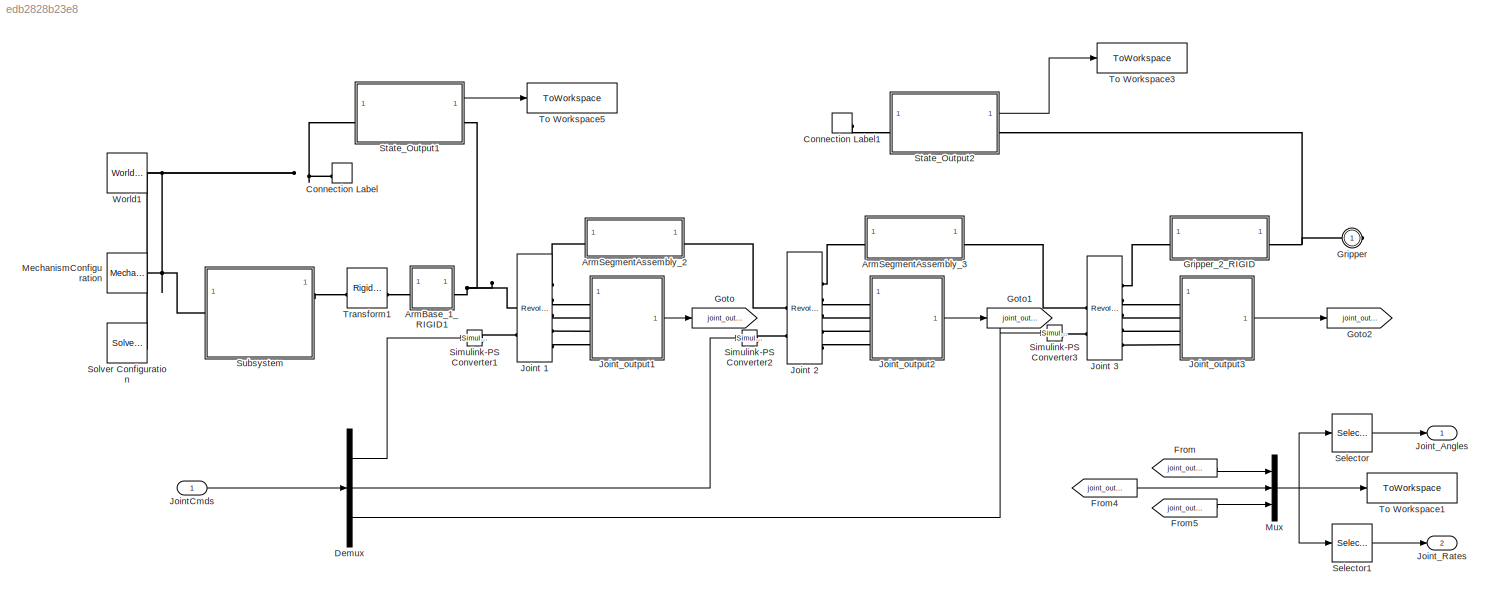
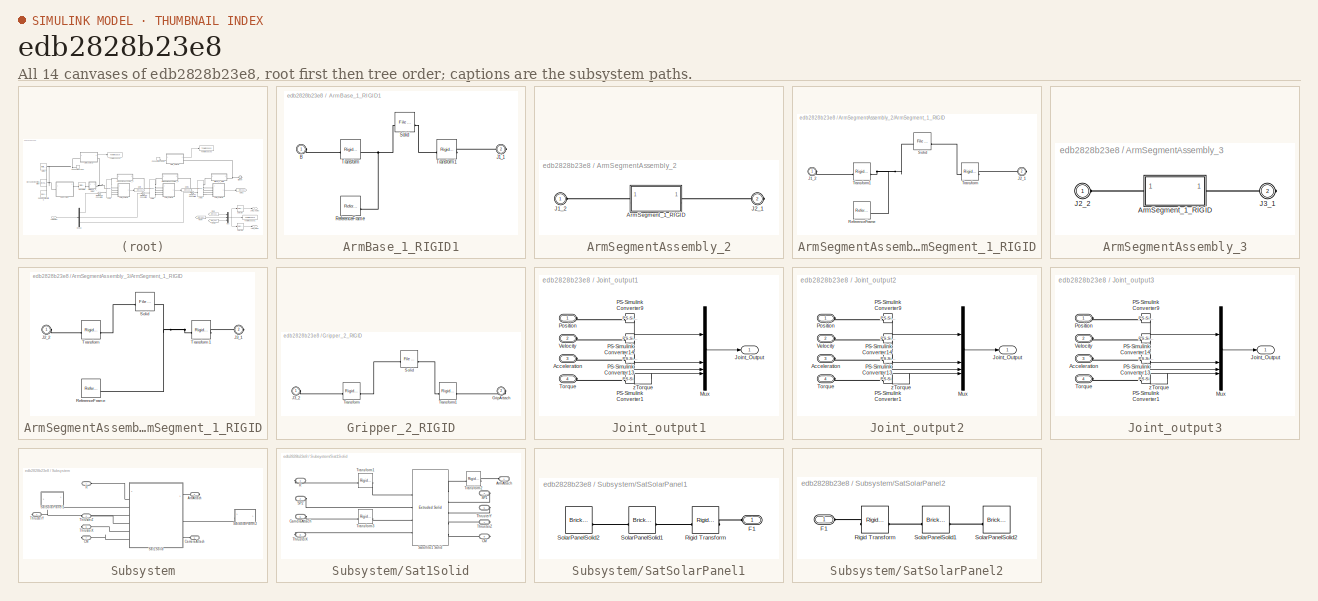
[diagram: thumbnail index - all 14 canvases of the model, root first then tree order]
MODEL slx_edb2828b23e8
KIND model
CONFIG AbsTol = auto
CONFIG EnableMultiTasking = off
CONFIG FixedStep = auto
CONFIG MaxStep = auto
CONFIG MinStep = auto
CONFIG RelTol = 1e-3
CONFIG SampleTimeConstraint = Unconstrained
CONFIG SolverName = VariableStepAuto
CONFIG StartTime = 0.0
CONFIG StopTime = 10.0
BLOCK [SubSystem] ArmBase_1_RIGID1
BLOCK [PMIOPort] ArmBase_1_RIGID1/B
  Side = Left
BLOCK [PMIOPort] ArmBase_1_RIGID1/J1_1
  Port = 2
  Side = Right
BLOCK [Reference] ArmBase_1_RIGID1/ReferenceFrame  REF=sm_lib/Frames and
Transforms/Reference
Frame
  SourceBlock = sm_lib/Frames and\nTransforms/Reference\nFrame
  SourceType = Reference\nFrame
BLOCK [Reference] ArmBase_1_RIGID1/Solid  REF=sm_lib/Body Elements/File Solid
  SourceBlock = sm_lib/Body Elements/File Solid
  SourceType = File Solid
BLOCK [Reference] ArmBase_1_RIGID1/Transform  REF=sm_lib/Frames and
Transforms/Rigid
Transform
  SourceBlock = sm_lib/Frames and\nTransforms/Rigid\nTransform
  SourceType = Rigid\nTransform
BLOCK [Reference] ArmBase_1_RIGID1/Transform1  REF=sm_lib/Frames and
Transforms/Rigid
Transform
  SourceBlock = sm_lib/Frames and\nTransforms/Rigid\nTransform
  SourceType = Rigid\nTransform
BLOCK [SubSystem] ArmSegmentAssembly_2
BLOCK [SubSystem] ArmSegmentAssembly_2/ArmSegment_1_RIGID
BLOCK [PMIOPort] ArmSegmentAssembly_2/ArmSegment_1_RIGID/J1_2
  Side = Left
BLOCK [PMIOPort] ArmSegmentAssembly_2/ArmSegment_1_RIGID/J2_1
  Port = 2
  Side = Right
BLOCK [Reference] ArmSegmentAssembly_2/ArmSegment_1_RIGID/ReferenceFrame  REF=sm_lib/Frames and
Transforms/Reference
Frame
  SourceBlock = sm_lib/Frames and\nTransforms/Reference\nFrame
  SourceType = Reference\nFrame
BLOCK [Reference] ArmSegmentAssembly_2/ArmSegment_1_RIGID/Solid  REF=sm_lib/Body Elements/File Solid
  SourceBlock = sm_lib/Body Elements/File Solid
  SourceType = File Solid
BLOCK [Reference] ArmSegmentAssembly_2/ArmSegment_1_RIGID/Transform  REF=sm_lib/Frames and
Transforms/Rigid
Transform
  SourceBlock = sm_lib/Frames and\nTransforms/Rigid\nTransform
  SourceType = Rigid\nTransform
BLOCK [Reference] ArmSegmentAssembly_2/ArmSegment_1_RIGID/Transform1  REF=sm_lib/Frames and
Transforms/Rigid
Transform
  SourceBlock = sm_lib/Frames and\nTransforms/Rigid\nTransform
  SourceType = Rigid\nTransform
BLOCK [PMIOPort] ArmSegmentAssembly_2/J1_2
  Side = Left
BLOCK [PMIOPort] ArmSegmentAssembly_2/J2_1
  Port = 2
  Side = Right
BLOCK [SubSystem] ArmSegmentAssembly_3
BLOCK [SubSystem] ArmSegmentAssembly_3/ArmSegment_1_RIGID
BLOCK [PMIOPort] ArmSegmentAssembly_3/ArmSegment_1_RIGID/J2_2
  Side = Left
BLOCK [PMIOPort] ArmSegmentAssembly_3/ArmSegment_1_RIGID/J3_1
  Port = 2
  Side = Right
BLOCK [Reference] ArmSegmentAssembly_3/ArmSegment_1_RIGID/ReferenceFrame  REF=sm_lib/Frames and
Transforms/Reference
Frame
  SourceBlock = sm_lib/Frames and\nTransforms/Reference\nFrame
  SourceType = Reference\nFrame
BLOCK [Reference] ArmSegmentAssembly_3/ArmSegment_1_RIGID/Solid  REF=sm_lib/Body Elements/File Solid
  SourceBlock = sm_lib/Body Elements/File Solid
  SourceType = File Solid
BLOCK [Reference] ArmSegmentAssembly_3/ArmSegment_1_RIGID/Transform  REF=sm_lib/Frames and
Transforms/Rigid
Transform
  SourceBlock = sm_lib/Frames and\nTransforms/Rigid\nTransform
  SourceType = Rigid\nTransform
BLOCK [Reference] ArmSegmentAssembly_3/ArmSegment_1_RIGID/Transform1  REF=sm_lib/Frames and
Transforms/Rigid
Transform
  SourceBlock = sm_lib/Frames and\nTransforms/Rigid\nTransform
  SourceType = Rigid\nTransform
BLOCK [PMIOPort] ArmSegmentAssembly_3/J2_2
  Side = Left
BLOCK [PMIOPort] ArmSegmentAssembly_3/J3_1
  Port = 2
  Side = Right
BLOCK [ConnectionLabel] Connection Label
  Label = World
BLOCK [ConnectionLabel] Connection Label1
  Label = World
BLOCK [Demux] Demux
  Outputs = 3
BLOCK [From] From
  GotoTag = joint_out_1
BLOCK [From] From4
  GotoTag = joint_out_2
BLOCK [From] From5
  GotoTag = joint_out_3
BLOCK [Goto] Goto
  GotoTag = joint_out_1
BLOCK [Goto] Goto1
  GotoTag = joint_out_2
BLOCK [Goto] Goto2
  GotoTag = joint_out_3
BLOCK [PMIOPort] Gripper
  Side = Right
BLOCK [SubSystem] Gripper_2_RIGID
BLOCK [PMIOPort] Gripper_2_RIGID/GripAttach
  Port = 2
  Side = Right
BLOCK [PMIOPort] Gripper_2_RIGID/J3_2
  Side = Left
BLOCK [Reference] Gripper_2_RIGID/Solid  REF=sm_lib/Body Elements/File Solid
  SourceBlock = sm_lib/Body Elements/File Solid
  SourceType = File Solid
BLOCK [Reference] Gripper_2_RIGID/Transform  REF=sm_lib/Frames and
Transforms/Rigid
Transform
  SourceBlock = sm_lib/Frames and\nTransforms/Rigid\nTransform
  SourceType = Rigid\nTransform
BLOCK [Reference] Gripper_2_RIGID/Transform1  REF=sm_lib/Frames and
Transforms/Rigid
Transform
  SourceBlock = sm_lib/Frames and\nTransforms/Rigid\nTransform
  SourceType = Rigid\nTransform
BLOCK [Reference] Joint 1  REF=sm_lib/Joints/Revolute Joint
  SourceBlock = sm_lib/Joints/Revolute Joint
  SourceType = Revolute Joint
BLOCK [Reference] Joint 2  REF=sm_lib/Joints/Revolute Joint
  SourceBlock = sm_lib/Joints/Revolute Joint
  SourceType = Revolute Joint
BLOCK [Reference] Joint 3  REF=sm_lib/Joints/Revolute Joint
  SourceBlock = sm_lib/Joints/Revolute Joint
  SourceType = Revolute Joint
BLOCK [Inport] JointCmds
BLOCK [Outport] Joint_Angles
BLOCK [Outport] Joint_Rates
  Port = 2
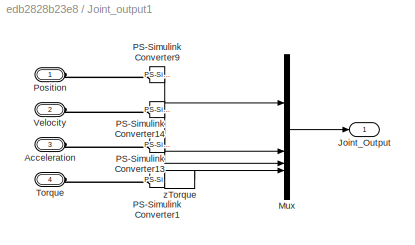
BLOCK [SubSystem] Joint_output1
BLOCK [PMIOPort] Joint_output1/Acceleration
  Port = 3
  Side = Left
BLOCK [Outport] Joint_output1/Joint_Output
BLOCK [Mux] Joint_output1/Mux
  DisplayOption = bar
BLOCK [Reference] Joint_output1/PS-Simulink Converter1  REF=nesl_utility/PS-Simulink
Converter
  SourceBlock = nesl_utility/PS-Simulink\nConverter
  SourceType = PS-Simulink\nConverter
BLOCK [Reference] Joint_output1/PS-Simulink Converter13  REF=nesl_utility/PS-Simulink
Converter
  SourceBlock = nesl_utility/PS-Simulink\nConverter
  SourceType = PS-Simulink\nConverter
BLOCK [Reference] Joint_output1/PS-Simulink Converter14  REF=nesl_utility/PS-Simulink
Converter
  SourceBlock = nesl_utility/PS-Simulink\nConverter
  SourceType = PS-Simulink\nConverter
BLOCK [Reference] Joint_output1/PS-Simulink Converter9  REF=nesl_utility/PS-Simulink
Converter
  SourceBlock = nesl_utility/PS-Simulink\nConverter
  SourceType = PS-Simulink\nConverter
BLOCK [PMIOPort] Joint_output1/Position
  Side = Left
BLOCK [PMIOPort] Joint_output1/Torque
  Port = 4
  Side = Left
BLOCK [PMIOPort] Joint_output1/Velocity
  Port = 2
  Side = Left
BLOCK [Selector] Joint_output1/zTorque
  IndexOptions = Index vector (dialog)
  Indices = 3
  InputPortWidth = 3
  OutputSizes = 1
BLOCK [SubSystem] Joint_output2
BLOCK [PMIOPort] Joint_output2/Acceleration
  Port = 3
  Side = Left
BLOCK [Outport] Joint_output2/Joint_Output
BLOCK [Mux] Joint_output2/Mux
  DisplayOption = bar
BLOCK [Reference] Joint_output2/PS-Simulink Converter1  REF=nesl_utility/PS-Simulink
Converter
  SourceBlock = nesl_utility/PS-Simulink\nConverter
  SourceType = PS-Simulink\nConverter
BLOCK [Reference] Joint_output2/PS-Simulink Converter13  REF=nesl_utility/PS-Simulink
Converter
  SourceBlock = nesl_utility/PS-Simulink\nConverter
  SourceType = PS-Simulink\nConverter
BLOCK [Reference] Joint_output2/PS-Simulink Converter14  REF=nesl_utility/PS-Simulink
Converter
  SourceBlock = nesl_utility/PS-Simulink\nConverter
  SourceType = PS-Simulink\nConverter
BLOCK [Reference] Joint_output2/PS-Simulink Converter9  REF=nesl_utility/PS-Simulink
Converter
  SourceBlock = nesl_utility/PS-Simulink\nConverter
  SourceType = PS-Simulink\nConverter
BLOCK [PMIOPort] Joint_output2/Position
  Side = Left
BLOCK [PMIOPort] Joint_output2/Torque
  Port = 4
  Side = Left
BLOCK [PMIOPort] Joint_output2/Velocity
  Port = 2
  Side = Left
BLOCK [Selector] Joint_output2/zTorque
  IndexOptions = Index vector (dialog)
  Indices = 3
  InputPortWidth = 3
  OutputSizes = 1
BLOCK [SubSystem] Joint_output3
BLOCK [PMIOPort] Joint_output3/Acceleration
  Port = 3
  Side = Left
BLOCK [Outport] Joint_output3/Joint_Output
BLOCK [Mux] Joint_output3/Mux
  DisplayOption = bar
BLOCK [Reference] Joint_output3/PS-Simulink Converter1  REF=nesl_utility/PS-Simulink
Converter
  SourceBlock = nesl_utility/PS-Simulink\nConverter
  SourceType = PS-Simulink\nConverter
BLOCK [Reference] Joint_output3/PS-Simulink Converter13  REF=nesl_utility/PS-Simulink
Converter
  SourceBlock = nesl_utility/PS-Simulink\nConverter
  SourceType = PS-Simulink\nConverter
BLOCK [Reference] Joint_output3/PS-Simulink Converter14  REF=nesl_utility/PS-Simulink
Converter
  SourceBlock = nesl_utility/PS-Simulink\nConverter
  SourceType = PS-Simulink\nConverter
BLOCK [Reference] Joint_output3/PS-Simulink Converter9  REF=nesl_utility/PS-Simulink
Converter
  SourceBlock = nesl_utility/PS-Simulink\nConverter
  SourceType = PS-Simulink\nConverter
BLOCK [PMIOPort] Joint_output3/Position
  Side = Left
BLOCK [PMIOPort] Joint_output3/Torque
  Port = 4
  Side = Left
BLOCK [PMIOPort] Joint_output3/Velocity
  Port = 2
  Side = Left
BLOCK [Selector] Joint_output3/zTorque
  IndexOptions = Index vector (dialog)
  Indices = 3
  InputPortWidth = 3
  OutputSizes = 1
BLOCK [Reference] MechanismConfiguration  REF=sm_lib/Utilities/Mechanism
Configuration
  SourceBlock = sm_lib/Utilities/Mechanism\nConfiguration
  SourceType = Mechanism\nConfiguration
BLOCK [Mux] Mux
  DisplayOption = bar
  Inputs = 3
BLOCK [Selector] Selector
  IndexOptions = Index vector (dialog)
  Indices = [1 5 9]
  InputPortWidth = 12
  OutputSizes = 1
BLOCK [Selector] Selector1
  IndexOptions = Index vector (dialog)
  Indices = [2 6 10]
  InputPortWidth = 12
  OutputSizes = 1
BLOCK [Reference] Simulink-PS Converter1  REF=nesl_utility/Simulink-PS
Converter
  SourceBlock = nesl_utility/Simulink-PS\nConverter
  SourceType = Simulink-PS\nConverter
BLOCK [Reference] Simulink-PS Converter2  REF=nesl_utility/Simulink-PS
Converter
  SourceBlock = nesl_utility/Simulink-PS\nConverter
  SourceType = Simulink-PS\nConverter
BLOCK [Reference] Simulink-PS Converter3  REF=nesl_utility/Simulink-PS
Converter
  SourceBlock = nesl_utility/Simulink-PS\nConverter
  SourceType = Simulink-PS\nConverter
BLOCK [Reference] Solver Configuration  REF=nesl_utility/Solver
Configuration
  SourceBlock = nesl_utility/Solver\nConfiguration
  SourceType = Solver\nConfiguration
BLOCK [SubSystem] State_Output1
  ReferencedSubsystem = Collect_State_Output
BLOCK [SubSystem] State_Output2
  ReferencedSubsystem = Collect_State_Output
BLOCK [SubSystem] Subsystem
BLOCK [PMIOPort] Subsystem/ArmAttach
  Port = 2
  Side = Right
BLOCK [PMIOPort] Subsystem/CM
  Port = 7
  Side = Right
BLOCK [PMIOPort] Subsystem/CameraAttach
  Port = 6
  Side = Left
BLOCK [PMIOPort] Subsystem/R
  Side = Left
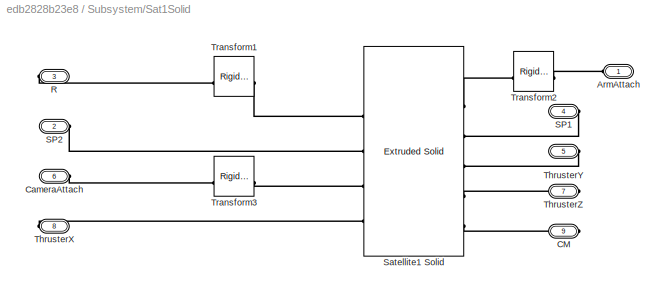
BLOCK [SubSystem] Subsystem/Sat1Solid
BLOCK [PMIOPort] Subsystem/Sat1Solid/ArmAttach
  Side = Left
BLOCK [PMIOPort] Subsystem/Sat1Solid/CM
  Port = 9
  Side = Right
BLOCK [PMIOPort] Subsystem/Sat1Solid/CameraAttach
  Port = 6
  Side = Left
BLOCK [PMIOPort] Subsystem/Sat1Solid/R
  Port = 3
  Side = Right
BLOCK [PMIOPort] Subsystem/Sat1Solid/SP1
  Port = 4
  Side = Right
BLOCK [PMIOPort] Subsystem/Sat1Solid/SP2
  Port = 2
  Side = Left
BLOCK [Reference] Subsystem/Sat1Solid/Satellite1 Solid  REF=sm_lib/Body Elements/Extruded Solid
  SourceBlock = sm_lib/Body Elements/Extruded Solid
  SourceType = Extruded Solid
BLOCK [PMIOPort] Subsystem/Sat1Solid/ThrusterX
  Port = 8
  Side = Right
BLOCK [PMIOPort] Subsystem/Sat1Solid/ThrusterY
  Port = 5
  Side = Right
BLOCK [PMIOPort] Subsystem/Sat1Solid/ThrusterZ
  Port = 7
  Side = Right
BLOCK [Reference] Subsystem/Sat1Solid/Transform1  REF=sm_lib/Frames and
Transforms/Rigid
Transform
  SourceBlock = sm_lib/Frames and\nTransforms/Rigid\nTransform
  SourceType = Rigid\nTransform
BLOCK [Reference] Subsystem/Sat1Solid/Transform2  REF=sm_lib/Frames and
Transforms/Rigid
Transform
  SourceBlock = sm_lib/Frames and\nTransforms/Rigid\nTransform
  SourceType = Rigid\nTransform
BLOCK [Reference] Subsystem/Sat1Solid/Transform3  REF=sm_lib/Frames and
Transforms/Rigid
Transform
  SourceBlock = sm_lib/Frames and\nTransforms/Rigid\nTransform
  SourceType = Rigid\nTransform
BLOCK [SubSystem] Subsystem/SatSolarPanel1
BLOCK [PMIOPort] Subsystem/SatSolarPanel1/F1
  Side = Left
BLOCK [Reference] Subsystem/SatSolarPanel1/Rigid Transform  REF=sm_lib/Frames and
Transforms/Rigid
Transform
  SourceBlock = sm_lib/Frames and\nTransforms/Rigid\nTransform
  SourceType = Rigid\nTransform
BLOCK [Reference] Subsystem/SatSolarPanel1/SolarPanelSolid1  REF=sm_lib/Body Elements/Brick Solid
  SourceBlock = sm_lib/Body Elements/Brick Solid
  SourceType = Brick Solid
BLOCK [Reference] Subsystem/SatSolarPanel1/SolarPanelSolid2  REF=sm_lib/Body Elements/Brick Solid
  SourceBlock = sm_lib/Body Elements/Brick Solid
  SourceType = Brick Solid
BLOCK [SubSystem] Subsystem/SatSolarPanel2
BLOCK [PMIOPort] Subsystem/SatSolarPanel2/F1
  Side = Left
BLOCK [Reference] Subsystem/SatSolarPanel2/Rigid Transform  REF=sm_lib/Frames and
Transforms/Rigid
Transform
  SourceBlock = sm_lib/Frames and\nTransforms/Rigid\nTransform
  SourceType = Rigid\nTransform
BLOCK [Reference] Subsystem/SatSolarPanel2/SolarPanelSolid1  REF=sm_lib/Body Elements/Brick Solid
  SourceBlock = sm_lib/Body Elements/Brick Solid
  SourceType = Brick Solid
BLOCK [Reference] Subsystem/SatSolarPanel2/SolarPanelSolid2  REF=sm_lib/Body Elements/Brick Solid
  SourceBlock = sm_lib/Body Elements/Brick Solid
  SourceType = Brick Solid
BLOCK [PMIOPort] Subsystem/ThrusterX
  Port = 5
  Side = Right
BLOCK [PMIOPort] Subsystem/ThrusterY
  Port = 3
  Side = Right
BLOCK [PMIOPort] Subsystem/ThrusterZ
  Port = 4
  Side = Right
BLOCK [ToWorkspace] To Workspace1
  FixptAsFi = on
  MaxDataPoints = inf
  SampleTime = -1
  SaveFormat = Timeseries
  VariableName = joint_state
BLOCK [ToWorkspace] To Workspace3
  FixptAsFi = on
  MaxDataPoints = inf
  SampleTime = -1
  SaveFormat = Timeseries
  VariableName = ee_state
BLOCK [ToWorkspace] To Workspace5
  FixptAsFi = on
  MaxDataPoints = inf
  SampleTime = -1
  SaveFormat = Timeseries
  VariableName = armbase_state
BLOCK [Reference] Transform1  REF=sm_lib/Frames and
Transforms/Rigid
Transform
  SourceBlock = sm_lib/Frames and\nTransforms/Rigid\nTransform
  SourceType = Rigid\nTransform
BLOCK [Reference] World1  REF=sm_lib/Frames and
Transforms/World Frame
  SourceBlock = sm_lib/Frames and\nTransforms/World Frame
  SourceType = World Frame
LINE Demux:1 -> Simulink-PS Converter1:1
LINE Demux:2 -> Simulink-PS Converter2:1
LINE Demux:3 -> Simulink-PS Converter3:1
LINE From4:1 -> Mux:2
LINE From5:1 -> Mux:3
LINE From:1 -> Mux:1
LINE JointCmds:1 -> Demux:1
LINE Joint_output1/Mux:1 -> Joint_output1/Joint_Output:1
LINE Joint_output1/PS-Simulink Converter13:1 -> Joint_output1/Mux:3
LINE Joint_output1/PS-Simulink Converter14:1 -> Joint_output1/Mux:2
LINE Joint_output1/PS-Simulink Converter1:1 -> Joint_output1/zTorque:1
LINE Joint_output1/PS-Simulink Converter9:1 -> Joint_output1/Mux:1
LINE Joint_output1/zTorque:1 -> Joint_output1/Mux:4
LINE Joint_output1:1 -> Goto:1
LINE Joint_output2/Mux:1 -> Joint_output2/Joint_Output:1
LINE Joint_output2/PS-Simulink Converter13:1 -> Joint_output2/Mux:3
LINE Joint_output2/PS-Simulink Converter14:1 -> Joint_output2/Mux:2
LINE Joint_output2/PS-Simulink Converter1:1 -> Joint_output2/zTorque:1
LINE Joint_output2/PS-Simulink Converter9:1 -> Joint_output2/Mux:1
LINE Joint_output2/zTorque:1 -> Joint_output2/Mux:4
LINE Joint_output2:1 -> Goto1:1
LINE Joint_output3/Mux:1 -> Joint_output3/Joint_Output:1
LINE Joint_output3/PS-Simulink Converter13:1 -> Joint_output3/Mux:3
LINE Joint_output3/PS-Simulink Converter14:1 -> Joint_output3/Mux:2
LINE Joint_output3/PS-Simulink Converter1:1 -> Joint_output3/zTorque:1
LINE Joint_output3/PS-Simulink Converter9:1 -> Joint_output3/Mux:1
LINE Joint_output3/zTorque:1 -> Joint_output3/Mux:4
LINE Joint_output3:1 -> Goto2:1
NET Mux:1 -> Selector1:1, Selector:1, To Workspace1:1
LINE Selector1:1 -> Joint_Rates:1
LINE Selector:1 -> Joint_Angles:1
LINE State_Output1:1 -> To Workspace5:1
LINE State_Output2:1 -> To Workspace3:1
PLINE ArmBase_1_RIGID1/B:RConn1 -- ArmBase_1_RIGID1/Transform:LConn1
PLINE ArmBase_1_RIGID1/J1_1:RConn1 -- ArmBase_1_RIGID1/Transform1:RConn1
PNET net1: ArmBase_1_RIGID1/ReferenceFrame:RConn1 -- ArmBase_1_RIGID1/Solid:LConn1 -- ArmBase_1_RIGID1/Transform:RConn1
PLINE ArmBase_1_RIGID1/Solid:RConn1 -- ArmBase_1_RIGID1/Transform1:LConn1
PLINE ArmBase_1_RIGID1:LConn1 -- Transform1:RConn1
PNET net2: ArmBase_1_RIGID1:RConn1 -- Joint 1:LConn1 -- State_Output1:RConn1
PLINE ArmSegmentAssembly_2/ArmSegment_1_RIGID/J1_2:RConn1 -- ArmSegmentAssembly_2/ArmSegment_1_RIGID/Transform1:LConn1
PLINE ArmSegmentAssembly_2/ArmSegment_1_RIGID/J2_1:RConn1 -- ArmSegmentAssembly_2/ArmSegment_1_RIGID/Transform:RConn1
PNET net3: ArmSegmentAssembly_2/ArmSegment_1_RIGID/ReferenceFrame:RConn1 -- ArmSegmentAssembly_2/ArmSegment_1_RIGID/Solid:LConn1 -- ArmSegmentAssembly_2/ArmSegment_1_RIGID/Transform1:RConn1
PLINE ArmSegmentAssembly_2/ArmSegment_1_RIGID/Solid:RConn1 -- ArmSegmentAssembly_2/ArmSegment_1_RIGID/Transform:LConn1
PLINE ArmSegmentAssembly_2/ArmSegment_1_RIGID:LConn1 -- ArmSegmentAssembly_2/J1_2:RConn1
PLINE ArmSegmentAssembly_2/ArmSegment_1_RIGID:RConn1 -- ArmSegmentAssembly_2/J2_1:RConn1
PLINE ArmSegmentAssembly_2:LConn1 -- Joint 1:RConn1
PLINE ArmSegmentAssembly_2:RConn1 -- Joint 2:LConn1
PLINE ArmSegmentAssembly_3/ArmSegment_1_RIGID/J2_2:RConn1 -- ArmSegmentAssembly_3/ArmSegment_1_RIGID/Transform:LConn1
PLINE ArmSegmentAssembly_3/ArmSegment_1_RIGID/J3_1:RConn1 -- ArmSegmentAssembly_3/ArmSegment_1_RIGID/Transform1:RConn1
PNET net4: ArmSegmentAssembly_3/ArmSegment_1_RIGID/ReferenceFrame:RConn1 -- ArmSegmentAssembly_3/ArmSegment_1_RIGID/Solid:RConn1 -- ArmSegmentAssembly_3/ArmSegment_1_RIGID/Transform1:LConn1
PLINE ArmSegmentAssembly_3/ArmSegment_1_RIGID/Solid:LConn1 -- ArmSegmentAssembly_3/ArmSegment_1_RIGID/Transform:RConn1
PLINE ArmSegmentAssembly_3/ArmSegment_1_RIGID:LConn1 -- ArmSegmentAssembly_3/J2_2:RConn1
PLINE ArmSegmentAssembly_3/ArmSegment_1_RIGID:RConn1 -- ArmSegmentAssembly_3/J3_1:RConn1
PLINE ArmSegmentAssembly_3:LConn1 -- Joint 2:RConn1
PLINE ArmSegmentAssembly_3:RConn1 -- Joint 3:LConn1
PLINE Connection Label1:LConn1 -- State_Output2:LConn1
PNET net5: Connection Label:LConn1 -- MechanismConfiguration:RConn1 -- Solver Configuration:RConn1 -- State_Output1:LConn1 -- Subsystem:LConn1 -- World1:RConn1
PNET net6: Gripper:RConn1 -- Gripper_2_RIGID:RConn1 -- State_Output2:RConn1
PLINE Gripper_2_RIGID/GripAttach:RConn1 -- Gripper_2_RIGID/Transform1:RConn1
PLINE Gripper_2_RIGID/J3_2:RConn1 -- Gripper_2_RIGID/Transform:LConn1
PLINE Gripper_2_RIGID/Solid:LConn1 -- Gripper_2_RIGID/Transform:RConn1
PLINE Gripper_2_RIGID/Solid:RConn1 -- Gripper_2_RIGID/Transform1:LConn1
PLINE Gripper_2_RIGID:LConn1 -- Joint 3:RConn1
PLINE Joint 1:LConn2 -- Simulink-PS Converter1:RConn1
PLINE Joint 1:RConn2 -- Joint_output1:LConn1
PLINE Joint 1:RConn3 -- Joint_output1:LConn2
PLINE Joint 1:RConn4 -- Joint_output1:LConn3
PLINE Joint 1:RConn5 -- Joint_output1:LConn4
PLINE Joint 2:LConn2 -- Simulink-PS Converter2:RConn1
PLINE Joint 2:RConn2 -- Joint_output2:LConn1
PLINE Joint 2:RConn3 -- Joint_output2:LConn2
PLINE Joint 2:RConn4 -- Joint_output2:LConn3
PLINE Joint 2:RConn5 -- Joint_output2:LConn4
PLINE Joint 3:LConn2 -- Simulink-PS Converter3:RConn1
PLINE Joint 3:RConn2 -- Joint_output3:LConn1
PLINE Joint 3:RConn3 -- Joint_output3:LConn2
PLINE Joint 3:RConn4 -- Joint_output3:LConn3
PLINE Joint 3:RConn5 -- Joint_output3:LConn4
PLINE Joint_output1/Acceleration:RConn1 -- Joint_output1/PS-Simulink Converter13:LConn1
PLINE Joint_output1/PS-Simulink Converter14:LConn1 -- Joint_output1/Velocity:RConn1
PLINE Joint_output1/PS-Simulink Converter1:LConn1 -- Joint_output1/Torque:RConn1
PLINE Joint_output1/PS-Simulink Converter9:LConn1 -- Joint_output1/Position:RConn1
PLINE Joint_output2/Acceleration:RConn1 -- Joint_output2/PS-Simulink Converter13:LConn1
PLINE Joint_output2/PS-Simulink Converter14:LConn1 -- Joint_output2/Velocity:RConn1
PLINE Joint_output2/PS-Simulink Converter1:LConn1 -- Joint_output2/Torque:RConn1
PLINE Joint_output2/PS-Simulink Converter9:LConn1 -- Joint_output2/Position:RConn1
PLINE Joint_output3/Acceleration:RConn1 -- Joint_output3/PS-Simulink Converter13:LConn1
PLINE Joint_output3/PS-Simulink Converter14:LConn1 -- Joint_output3/Velocity:RConn1
PLINE Joint_output3/PS-Simulink Converter1:LConn1 -- Joint_output3/Torque:RConn1
PLINE Joint_output3/PS-Simulink Converter9:LConn1 -- Joint_output3/Position:RConn1
PLINE Subsystem/ArmAttach:RConn1 -- Subsystem/Sat1Solid:LConn1
PLINE Subsystem/CM:RConn1 -- Subsystem/Sat1Solid:RConn6
PLINE Subsystem/CameraAttach:RConn1 -- Subsystem/Sat1Solid:LConn3
PLINE Subsystem/R:RConn1 -- Subsystem/Sat1Solid:RConn1
PLINE Subsystem/Sat1Solid/ArmAttach:RConn1 -- Subsystem/Sat1Solid/Transform2:RConn1
PLINE Subsystem/Sat1Solid/CM:RConn1 -- Subsystem/Sat1Solid/Satellite1 Solid:LConn5
PLINE Subsystem/Sat1Solid/CameraAttach:RConn1 -- Subsystem/Sat1Solid/Transform3:RConn1
PLINE Subsystem/Sat1Solid/R:RConn1 -- Subsystem/Sat1Solid/Transform1:LConn1
PLINE Subsystem/Sat1Solid/SP1:RConn1 -- Subsystem/Sat1Solid/Satellite1 Solid:LConn2
PLINE Subsystem/Sat1Solid/SP2:RConn1 -- Subsystem/Sat1Solid/Satellite1 Solid:RConn2
PLINE Subsystem/Sat1Solid/Satellite1 Solid:LConn1 -- Subsystem/Sat1Solid/Transform2:LConn1
PLINE Subsystem/Sat1Solid/Satellite1 Solid:LConn3 -- Subsystem/Sat1Solid/ThrusterY:RConn1
PLINE Subsystem/Sat1Solid/Satellite1 Solid:LConn4 -- Subsystem/Sat1Solid/ThrusterZ:RConn1
PLINE Subsystem/Sat1Solid/Satellite1 Solid:RConn1 -- Subsystem/Sat1Solid/Transform1:RConn1
PLINE Subsystem/Sat1Solid/Satellite1 Solid:RConn3 -- Subsystem/Sat1Solid/Transform3:LConn1
PLINE Subsystem/Sat1Solid/Satellite1 Solid:RConn4 -- Subsystem/Sat1Solid/ThrusterX:RConn1
PLINE Subsystem/Sat1Solid:LConn2 -- Subsystem/SatSolarPanel2:LConn1
PLINE Subsystem/Sat1Solid:RConn2 -- Subsystem/SatSolarPanel1:LConn1
PLINE Subsystem/Sat1Solid:RConn3 -- Subsystem/ThrusterY:RConn1
PLINE Subsystem/Sat1Solid:RConn4 -- Subsystem/ThrusterZ:RConn1
PLINE Subsystem/Sat1Solid:RConn5 -- Subsystem/ThrusterX:RConn1
PLINE Subsystem/SatSolarPanel1/F1:RConn1 -- Subsystem/SatSolarPanel1/Rigid Transform:RConn1
PLINE Subsystem/SatSolarPanel1/Rigid Transform:LConn1 -- Subsystem/SatSolarPanel1/SolarPanelSolid1:LConn1
PLINE Subsystem/SatSolarPanel1/SolarPanelSolid1:RConn1 -- Subsystem/SatSolarPanel1/SolarPanelSolid2:LConn1
PLINE Subsystem/SatSolarPanel2/F1:RConn1 -- Subsystem/SatSolarPanel2/Rigid Transform:LConn1
PLINE Subsystem/SatSolarPanel2/Rigid Transform:RConn1 -- Subsystem/SatSolarPanel2/SolarPanelSolid1:LConn1
PLINE Subsystem/SatSolarPanel2/SolarPanelSolid1:RConn1 -- Subsystem/SatSolarPanel2/SolarPanelSolid2:LConn1
PLINE Subsystem:RConn1 -- Transform1:LConn1
note: NET lines group one-source signal fan-out (src -> all destinations, sorted); 1:1 wires keep LINE; PNET lines group multi-terminal physical nets as a canonical sorted terminal list (undirected conserving connections); 2-terminal nets keep the pairwise PLINE form
